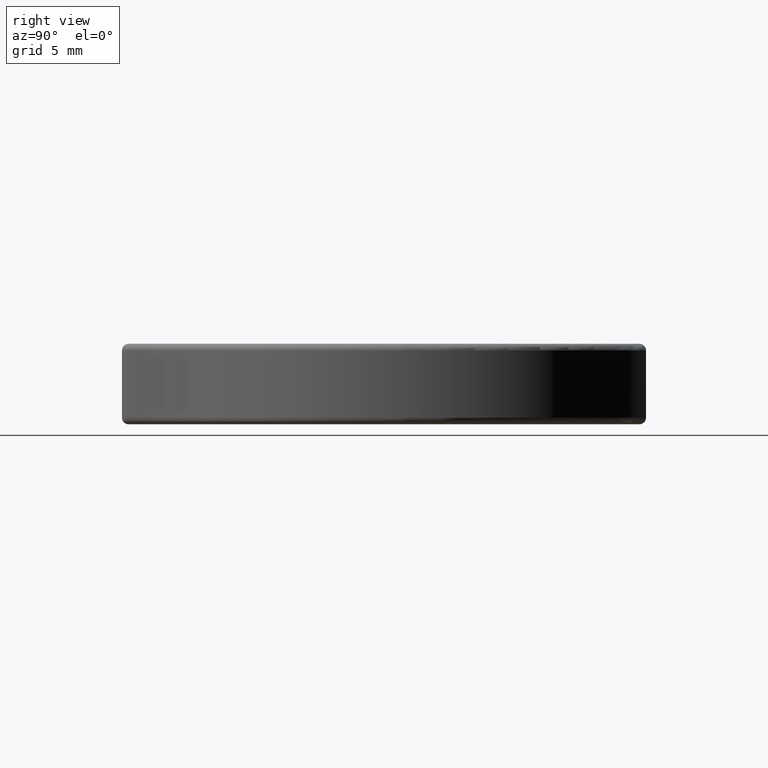
[diagram: clean part render]
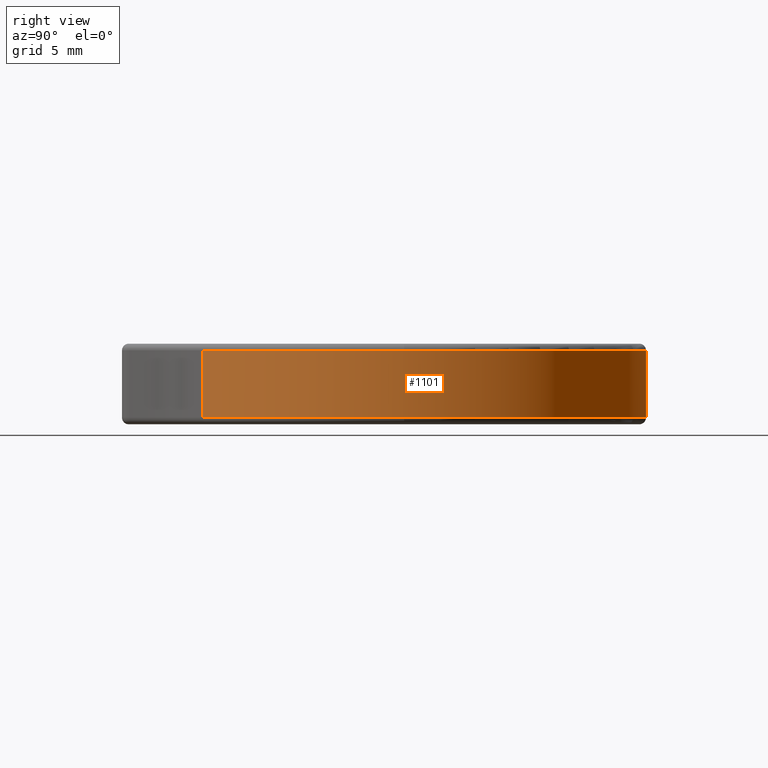
[diagram: same view with one face highlighted and labeled with its STEP entity id]
A machine part, right view. The second image highlights one B-rep face of the part: STEP entity #1101.
In plain terms, the highlighted cylindrical surface (partial cylindrical patch) has radius 18.75 mm, axis along (-0, -0, -1).
Its self-contained STEP definition (entity closure, byte-faithful):
#33 = CYLINDRICAL_SURFACE ( 'NONE', #2062, 18.75000000000000400 ) ;
#36 = DIRECTION ( 'NONE',  ( -0.0000000000000000000, 0.0000000000000000000, 1.000000000000000000 ) ) ;
#205 = AXIS2_PLACEMENT_3D ( 'NONE', #1627, #759, #2671 ) ;
#317 = CARTESIAN_POINT ( 'NONE',  ( 13.91598372073245200, -12.42400237701314200, 44.49999999998590300 ) ) ;
#340 = LINE ( 'NONE', #2494, #778 ) ;
#374 = CIRCLE ( 'NONE', #380, 18.75000000000000400 ) ;
#380 = AXIS2_PLACEMENT_3D ( 'NONE', #2524, #1466, #818 ) ;
#403 = EDGE_CURVE ( 'NONE', #2573, #2142, #340, .T. ) ;
#424 = EDGE_CURVE ( 'NONE', #553, #2573, #374, .T. ) ;
#458 = VERTEX_POINT ( 'NONE', #2332 ) ;
#553 = VERTEX_POINT ( 'NONE', #1892 ) ;
#584 = CARTESIAN_POINT ( 'NONE',  ( 2.667861014286739200, 2.577405409616099400, 44.49999999998590300 ) ) ;
#587 = ORIENTED_EDGE ( 'NONE', *, *, #2135, .F. ) ;
#759 = DIRECTION ( 'NONE',  ( -0.0000000000000000000, 0.0000000000000000000, 1.000000000000000000 ) ) ;
#778 = VECTOR ( 'NONE', #1651, 1000.000000000000000 ) ;
#801 = CARTESIAN_POINT ( 'NONE',  ( 7.917861014286740100, 20.57740540961609800, 44.99999999998590300 ) ) ;
#815 = DIRECTION ( 'NONE',  ( -1.000000000000000000, 0.0000000000000000000, 0.0000000000000000000 ) ) ;
#818 = DIRECTION ( 'NONE',  ( 1.000000000000000000, 0.0000000000000000000, 0.0000000000000000000 ) ) ;
#924 = ORIENTED_EDGE ( 'NONE', *, *, #424, .T. ) ;
#1006 = CIRCLE ( 'NONE', #205, 18.75000000000000400 ) ;
#1007 = DIRECTION ( 'NONE',  ( 1.000000000000000000, 8.789265611615821000E-016, 0.0000000000000000000 ) ) ;
#1010 = FACE_OUTER_BOUND ( 'NONE', #1320, .T. ) ;
#1101 = ADVANCED_FACE ( 'NONE', ( #1010 ), #33, .T. ) ;
#1125 = CARTESIAN_POINT ( 'NONE',  ( 2.667861014286739200, 2.577405409616099400, 39.49999999998591000 ) ) ;
#1155 = ORIENTED_EDGE ( 'NONE', *, *, #2042, .T. ) ;
#1161 = AXIS2_PLACEMENT_3D ( 'NONE', #1125, #36, #2628 ) ;
#1227 = CARTESIAN_POINT ( 'NONE',  ( 2.667861014286739200, 2.577405409616099400, 44.99999999998590300 ) ) ;
#1268 = EDGE_CURVE ( 'NONE', #1872, #458, #1345, .T. ) ;
#1320 = EDGE_LOOP ( 'NONE', ( #587, #1354, #924, #2188, #1155, #2302 ) ) ;
#1337 = VERTEX_POINT ( 'NONE', #2677 ) ;
#1345 = CIRCLE ( 'NONE', #1161, 18.75000000000000400 ) ;
#1354 = ORIENTED_EDGE ( 'NONE', *, *, #2068, .T. ) ;
#1466 = DIRECTION ( 'NONE',  ( 0.0000000000000000000, -0.0000000000000000000, -1.000000000000000000 ) ) ;
#1627 = CARTESIAN_POINT ( 'NONE',  ( 2.667861014286739200, 2.577405409616099400, 39.49999999998591000 ) ) ;
#1651 = DIRECTION ( 'NONE',  ( -0.0000000000000000000, -0.0000000000000000000, -1.000000000000000000 ) ) ;
#1872 = VERTEX_POINT ( 'NONE', #2200 ) ;
#1892 = CARTESIAN_POINT ( 'NONE',  ( 21.41786101428674300, 2.577405409616099400, 44.49999999998590300 ) ) ;
#2024 = VECTOR ( 'NONE', #2721, 1000.000000000000000 ) ;
#2042 = EDGE_CURVE ( 'NONE', #2142, #1872, #1006, .T. ) ;
#2062 = AXIS2_PLACEMENT_3D ( 'NONE', #1227, #2749, #815 ) ;
#2068 = EDGE_CURVE ( 'NONE', #1337, #553, #2316, .T. ) ;
#2100 = AXIS2_PLACEMENT_3D ( 'NONE', #584, #2566, #1007 ) ;
#2135 = EDGE_CURVE ( 'NONE', #1337, #458, #2585, .T. ) ;
#2142 = VERTEX_POINT ( 'NONE', #2798 ) ;
#2188 = ORIENTED_EDGE ( 'NONE', *, *, #403, .T. ) ;
#2200 = CARTESIAN_POINT ( 'NONE',  ( 21.41786101428674300, 2.577405409616099400, 39.49999999998591000 ) ) ;
#2302 = ORIENTED_EDGE ( 'NONE', *, *, #1268, .T. ) ;
#2316 = CIRCLE ( 'NONE', #2100, 18.75000000000000400 ) ;
#2332 = CARTESIAN_POINT ( 'NONE',  ( 7.917861014286740100, 20.57740540961609800, 39.49999999998591000 ) ) ;
#2494 = CARTESIAN_POINT ( 'NONE',  ( 13.91598372073245200, -12.42400237701314200, 44.99999999998590300 ) ) ;
#2524 = CARTESIAN_POINT ( 'NONE',  ( 2.667861014286739200, 2.577405409616099400, 44.49999999998590300 ) ) ;
#2566 = DIRECTION ( 'NONE',  ( 0.0000000000000000000, -0.0000000000000000000, -1.000000000000000000 ) ) ;
#2573 = VERTEX_POINT ( 'NONE', #317 ) ;
#2585 = LINE ( 'NONE', #801, #2024 ) ;
#2628 = DIRECTION ( 'NONE',  ( 1.000000000000000000, 0.0000000000000000000, 0.0000000000000000000 ) ) ;
#2671 = DIRECTION ( 'NONE',  ( 1.000000000000000000, 0.0000000000000000000, 0.0000000000000000000 ) ) ;
#2677 = CARTESIAN_POINT ( 'NONE',  ( 7.917861014286740100, 20.57740540961609800, 44.49999999998590300 ) ) ;
#2721 = DIRECTION ( 'NONE',  ( -0.0000000000000000000, -0.0000000000000000000, -1.000000000000000000 ) ) ;
#2749 = DIRECTION ( 'NONE',  ( -0.0000000000000000000, -0.0000000000000000000, -1.000000000000000000 ) ) ;
#2798 = CARTESIAN_POINT ( 'NONE',  ( 13.91598372073245200, -12.42400237701314200, 39.49999999998591000 ) ) ;